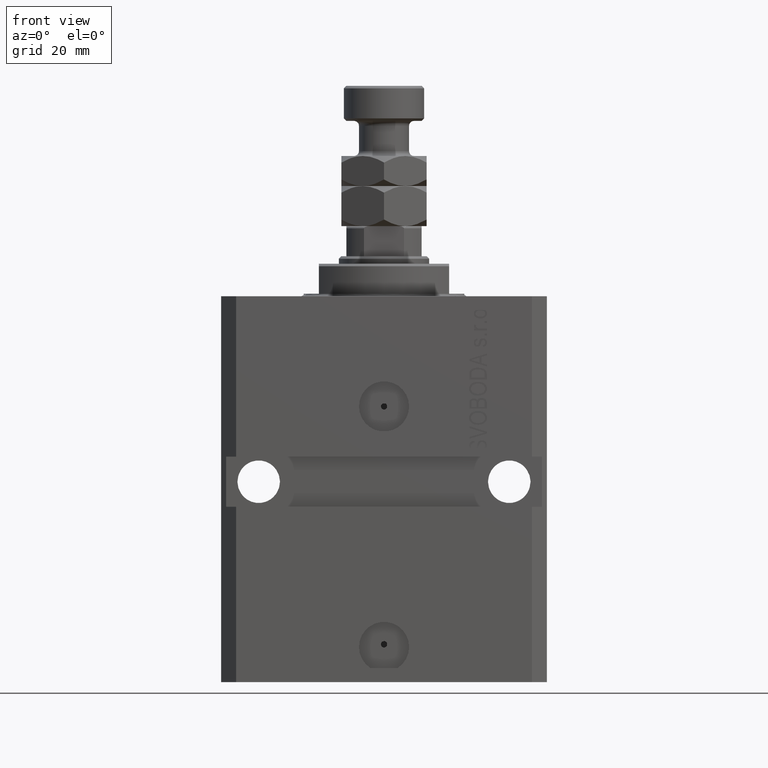
[diagram: clean part render]
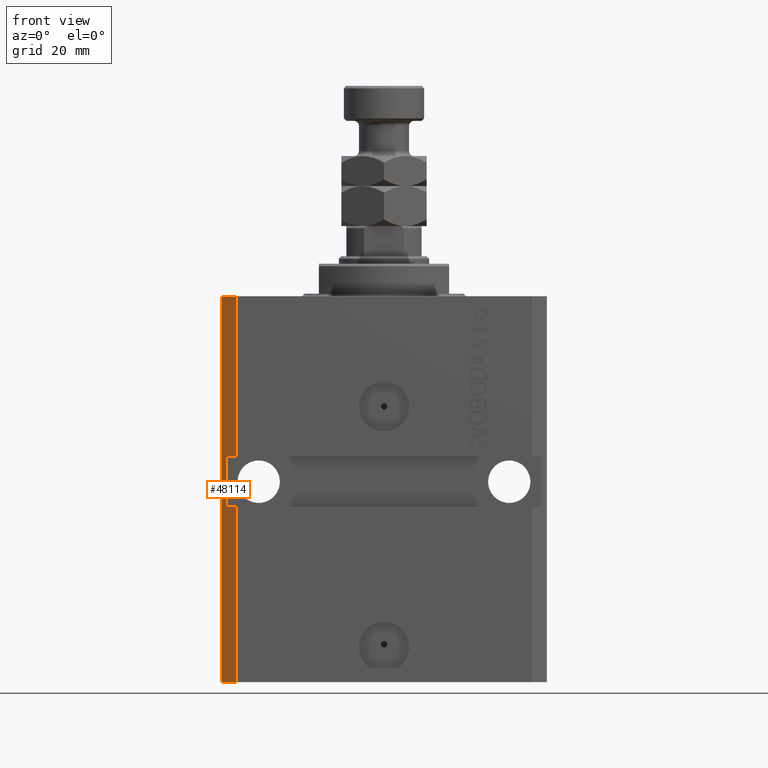
[diagram: same view with one face highlighted and labeled with its STEP entity id]
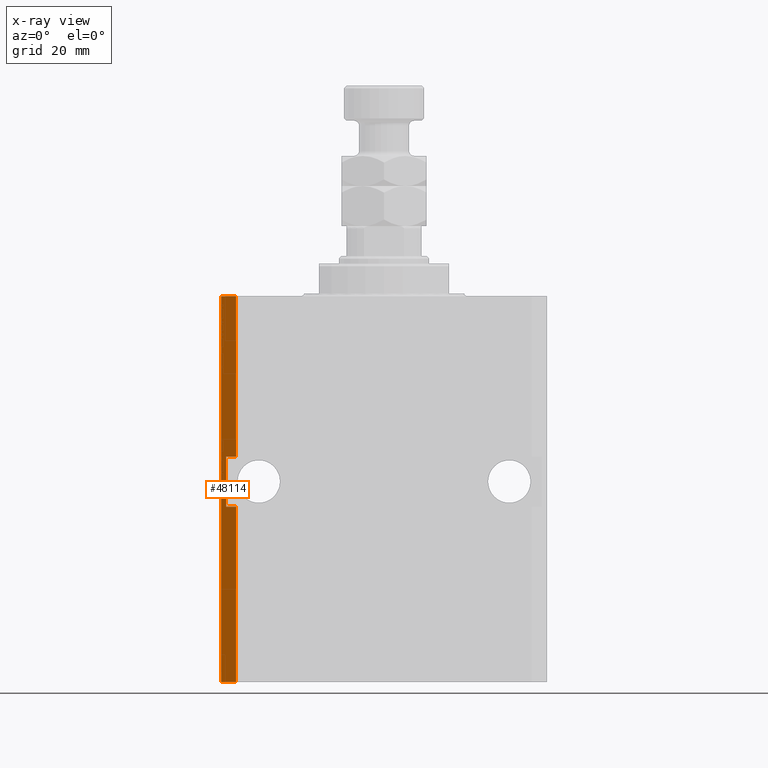
[diagram: x-ray of the same camera — body ghosted, the highlighted face saturated]
A machine part, front view. The second image highlights one B-rep face of the part: STEP entity #48114.
The next image is the same camera in x-ray: the body ghosted, the highlighted face saturated — about 0% of this face is hidden behind the body in this view.
In plain terms, the highlighted planar face has unit normal (-0.7071, -0.7071, 0).
Its self-contained STEP definition (entity closure, byte-faithful):
#64 = DIRECTION ( 'NONE',  ( 0.7071067811865474617, -0.7071067811865474617, 0.000000000000000000 ) ) ;
#345 = EDGE_CURVE ( 'NONE', #25078, #10313, #42300, .T. ) ;
#396 = ORIENTED_EDGE ( 'NONE', *, *, #12134, .F. ) ;
#667 = LINE ( 'NONE', #20392, #7407 ) ;
#1210 = DIRECTION ( 'NONE',  ( 0.000000000000000000, 0.000000000000000000, 1.000000000000000000 ) ) ;
#1565 = VERTEX_POINT ( 'NONE', #35176 ) ;
#2853 = ORIENTED_EDGE ( 'NONE', *, *, #5816, .F. ) ;
#3941 = ORIENTED_EDGE ( 'NONE', *, *, #45849, .T. ) ;
#4825 = CARTESIAN_POINT ( 'NONE',  ( -32.49999999999650413, -19.49999999999949907, 0.000000000000000000 ) ) ;
#5358 = CARTESIAN_POINT ( 'NONE',  ( -32.49999999999650413, -19.49999999999949907, -77.00000000000000000 ) ) ;
#5383 = ORIENTED_EDGE ( 'NONE', *, *, #46119, .T. ) ;
#5593 = CARTESIAN_POINT ( 'NONE',  ( -29.49999999999650413, -22.49999999999949907, -77.00000000000000000 ) ) ;
#5816 = EDGE_CURVE ( 'NONE', #9119, #23734, #5981, .T. ) ;
#5981 = LINE ( 'NONE', #25365, #18266 ) ;
#6661 = LINE ( 'NONE', #47858, #27397 ) ;
#7407 = VECTOR ( 'NONE', #11914, 1000.000000000000000 ) ;
#7633 = CARTESIAN_POINT ( 'NONE',  ( -31.49999999999650413, -20.49999999999949907, -41.99999999999999289 ) ) ;
#8058 = CARTESIAN_POINT ( 'NONE',  ( -32.49999999999650413, -19.49999999999949907, -77.00000000000000000 ) ) ;
#8514 = VECTOR ( 'NONE', #31309, 1000.000000000000114 ) ;
#9101 = DIRECTION ( 'NONE',  ( 0.7071067811865474617, -0.7071067811865474617, 0.000000000000000000 ) ) ;
#9119 = VERTEX_POINT ( 'NONE', #7633 ) ;
#9927 = DIRECTION ( 'NONE',  ( -0.7071067811865474617, 0.7071067811865474617, 7.548521435980497974E-17 ) ) ;
#10313 = VERTEX_POINT ( 'NONE', #28304 ) ;
#11165 = VECTOR ( 'NONE', #9101, 1000.000000000000114 ) ;
#11914 = DIRECTION ( 'NONE',  ( 0.000000000000000000, 0.000000000000000000, 1.000000000000000000 ) ) ;
#12134 = EDGE_CURVE ( 'NONE', #36876, #1565, #6661, .T. ) ;
#12367 = EDGE_CURVE ( 'NONE', #17832, #25078, #667, .T. ) ;
#13064 = EDGE_CURVE ( 'NONE', #31631, #23734, #20698, .T. ) ;
#13751 = EDGE_LOOP ( 'NONE', ( #2853, #5383, #396, #3941, #19696, #34313, #30885, #33807 ) ) ;
#16586 = CARTESIAN_POINT ( 'NONE',  ( -29.49999999999650413, -22.49999999999949907, -41.99999999999999289 ) ) ;
#17018 = LINE ( 'NONE', #32257, #20269 ) ;
#17832 = VERTEX_POINT ( 'NONE', #31936 ) ;
#18266 = VECTOR ( 'NONE', #48309, 1000.000000000000114 ) ;
#18427 = CARTESIAN_POINT ( 'NONE',  ( -32.49999999999650413, -19.49999999999949907, 0.000000000000000000 ) ) ;
#19696 = ORIENTED_EDGE ( 'NONE', *, *, #345, .F. ) ;
#20269 = VECTOR ( 'NONE', #32737, 1000.000000000000000 ) ;
#20392 = CARTESIAN_POINT ( 'NONE',  ( -32.49999999999650413, -19.49999999999949907, -77.00000000000000000 ) ) ;
#20698 = LINE ( 'NONE', #31200, #26603 ) ;
#21157 = AXIS2_PLACEMENT_3D ( 'NONE', #8058, #27044, #64 ) ;
#22239 = CARTESIAN_POINT ( 'NONE',  ( -29.49999999999650413, -22.49999999999949907, -77.00000000000000000 ) ) ;
#23734 = VERTEX_POINT ( 'NONE', #16586 ) ;
#25078 = VERTEX_POINT ( 'NONE', #18427 ) ;
#25365 = CARTESIAN_POINT ( 'NONE',  ( -32.49999999999650413, -19.49999999999949551, -41.99999999999999289 ) ) ;
#26603 = VECTOR ( 'NONE', #1210, 1000.000000000000000 ) ;
#26925 = CARTESIAN_POINT ( 'NONE',  ( -29.49999999999650058, -22.49999999999949907, -32.00000000000000000 ) ) ;
#27044 = DIRECTION ( 'NONE',  ( -0.7071067811865475727, -0.7071067811865475727, 0.000000000000000000 ) ) ;
#27397 = VECTOR ( 'NONE', #9927, 1000.000000000000114 ) ;
#28304 = CARTESIAN_POINT ( 'NONE',  ( -29.49999999999650413, -22.49999999999949907, 0.000000000000000000 ) ) ;
#30885 = ORIENTED_EDGE ( 'NONE', *, *, #34435, .T. ) ;
#31050 = PLANE ( 'NONE',  #21157 ) ;
#31200 = CARTESIAN_POINT ( 'NONE',  ( -29.49999999999650413, -22.49999999999949907, -77.00000000000000000 ) ) ;
#31309 = DIRECTION ( 'NONE',  ( 0.7071067811865474617, -0.7071067811865474617, 0.000000000000000000 ) ) ;
#31426 = VECTOR ( 'NONE', #43791, 1000.000000000000000 ) ;
#31631 = VERTEX_POINT ( 'NONE', #22239 ) ;
#31936 = CARTESIAN_POINT ( 'NONE',  ( -32.49999999999650413, -19.49999999999949907, -77.00000000000000000 ) ) ;
#32257 = CARTESIAN_POINT ( 'NONE',  ( -31.49999999999650413, -20.49999999999950262, -77.00000000000000000 ) ) ;
#32737 = DIRECTION ( 'NONE',  ( 0.000000000000000000, 0.000000000000000000, 1.000000000000000000 ) ) ;
#33807 = ORIENTED_EDGE ( 'NONE', *, *, #13064, .T. ) ;
#34275 = FACE_OUTER_BOUND ( 'NONE', #13751, .T. ) ;
#34313 = ORIENTED_EDGE ( 'NONE', *, *, #12367, .F. ) ;
#34435 = EDGE_CURVE ( 'NONE', #17832, #31631, #47527, .T. ) ;
#35176 = CARTESIAN_POINT ( 'NONE',  ( -31.49999999999650413, -20.49999999999950262, -32.00000000000000000 ) ) ;
#36876 = VERTEX_POINT ( 'NONE', #26925 ) ;
#42300 = LINE ( 'NONE', #4825, #8514 ) ;
#43791 = DIRECTION ( 'NONE',  ( 0.000000000000000000, 0.000000000000000000, 1.000000000000000000 ) ) ;
#45849 = EDGE_CURVE ( 'NONE', #36876, #10313, #47991, .T. ) ;
#46119 = EDGE_CURVE ( 'NONE', #9119, #1565, #17018, .T. ) ;
#47527 = LINE ( 'NONE', #5358, #11165 ) ;
#47858 = CARTESIAN_POINT ( 'NONE',  ( -32.49999999999650413, -19.49999999999950262, -32.00000000000000000 ) ) ;
#47991 = LINE ( 'NONE', #5593, #31426 ) ;
#48114 = ADVANCED_FACE ( 'NONE', ( #34275 ), #31050, .T. ) ;
#48309 = DIRECTION ( 'NONE',  ( 0.7071067811865474617, -0.7071067811865474617, 7.548521435980497974E-17 ) ) ;